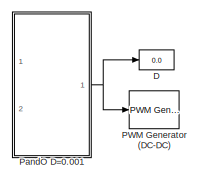
[diagram: root canvas - part 1/4, top right region]
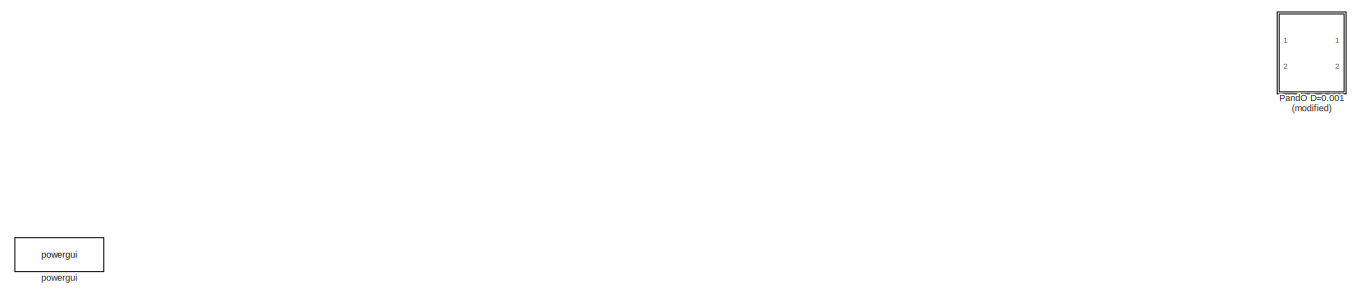
[diagram: root canvas - part 2/4, top left region]
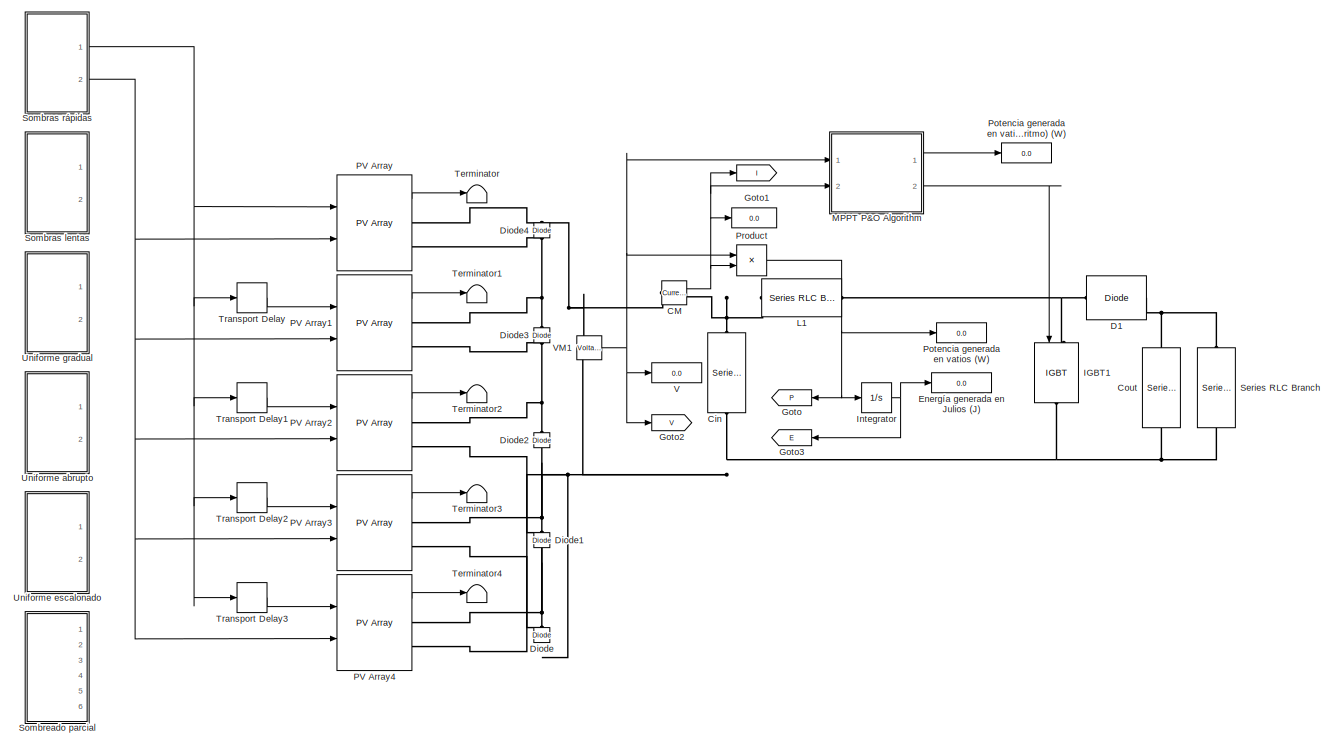
[diagram: root canvas - part 3/4, bottom center region]
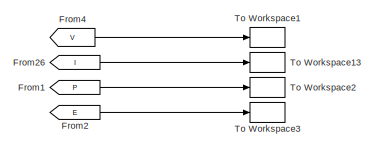
[diagram: root canvas - part 4/4, bottom right region]
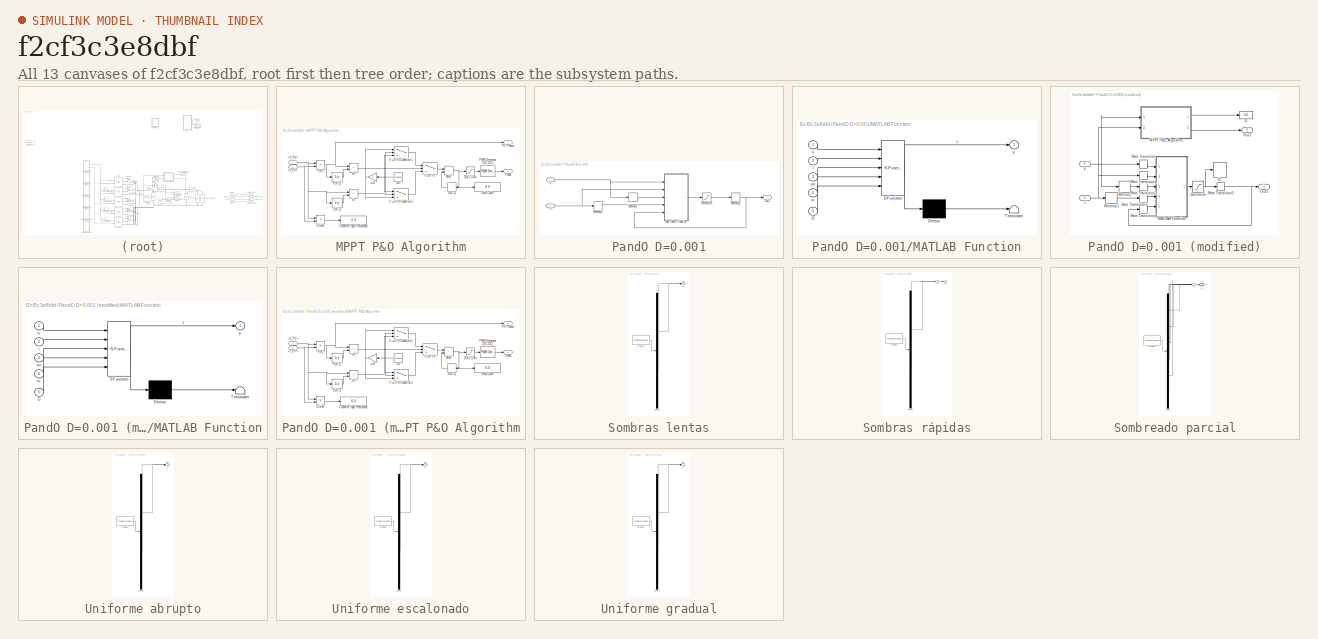
[diagram: thumbnail index - all 13 canvases of the model, root first then tree order]
MODEL slx_f2cf3c3e8dbf
KIND model
CONFIG AbsTol = auto
CONFIG EnableMultiTasking = off
CONFIG FixedStep = auto
CONFIG MaxStep = auto
CONFIG MinStep = auto
CONFIG RelTol = 1e-4
CONFIG SampleTimeConstraint = Unconstrained
CONFIG SolverName = ode23tb
CONFIG StartTime = 0.0
CONFIG StopTime = 60
BLOCK [Reference] CM  REF=spsCurrentMeasurementLib/Current Measurement
  Ports = [0, 1, 0, 0, 0, 1, 1]
  SourceBlock = spsCurrentMeasurementLib/Current Measurement
  SourceProductBaseCode = PS
  SourceType = Current Measurement
  UserDataPersistent = on
BLOCK [Reference] Cin  REF=spsSeriesRLCBranchLib/Series RLC Branch
  NameLocation = left
  Ports = [0, 0, 0, 0, 0, 1, 1]
  SourceBlock = spsSeriesRLCBranchLib/Series RLC Branch
  SourceProductBaseCode = PS
  SourceType = Series RLC Branch
BLOCK [Reference] Cout  REF=spsSeriesRLCBranchLib/Series RLC Branch
  NameLocation = left
  Ports = [0, 0, 0, 0, 0, 1, 1]
  SourceBlock = spsSeriesRLCBranchLib/Series RLC Branch
  SourceProductBaseCode = PS
  SourceType = Series RLC Branch
BLOCK [Display] D
  Commented = on
  Decimation = 1
  NameLocation = top
  Ports = [1]
BLOCK [Reference] D1  REF=spsDiodeLib/Diode
  Ports = [0, 0, 0, 0, 0, 1, 1]
  SourceBlock = spsDiodeLib/Diode
  SourceProductBaseCode = PS
  SourceType = Diode
BLOCK [Reference] Diode  REF=spsDiodeLib/Diode
  NameLocation = right
  Ports = [0, 0, 0, 0, 0, 1, 1]
  SourceBlock = spsDiodeLib/Diode
  SourceProductBaseCode = PS
  SourceType = Diode
BLOCK [Reference] Diode1  REF=spsDiodeLib/Diode
  NameLocation = right
  Ports = [0, 0, 0, 0, 0, 1, 1]
  SourceBlock = spsDiodeLib/Diode
  SourceProductBaseCode = PS
  SourceType = Diode
BLOCK [Reference] Diode2  REF=spsDiodeLib/Diode
  NameLocation = right
  Ports = [0, 0, 0, 0, 0, 1, 1]
  SourceBlock = spsDiodeLib/Diode
  SourceProductBaseCode = PS
  SourceType = Diode
BLOCK [Reference] Diode3  REF=spsDiodeLib/Diode
  NameLocation = right
  Ports = [0, 0, 0, 0, 0, 1, 1]
  SourceBlock = spsDiodeLib/Diode
  SourceProductBaseCode = PS
  SourceType = Diode
BLOCK [Reference] Diode4  REF=spsDiodeLib/Diode
  NameLocation = right
  Ports = [0, 0, 0, 0, 0, 1, 1]
  SourceBlock = spsDiodeLib/Diode
  SourceProductBaseCode = PS
  SourceType = Diode
BLOCK [Display] Energía generada en Julios (J) 
  Decimation = 1
  NameLocation = top
  Ports = [1]
BLOCK [From] From1
  GotoTag = P
BLOCK [From] From2
  GotoTag = E
BLOCK [From] From26
  GotoTag = I
BLOCK [From] From4
  GotoTag = V
BLOCK [Goto] Goto
  GotoTag = P
BLOCK [Goto] Goto1
  GotoTag = I
BLOCK [Goto] Goto2
  GotoTag = V
BLOCK [Goto] Goto3
  GotoTag = E
BLOCK [Display] I
  Decimation = 1
  NameLocation = top
  Ports = [1]
BLOCK [Reference] IGBT1  REF=spsIGBTLib/IGBT
  NameLocation = left
  Ports = [1, 0, 0, 0, 0, 1, 1]
  SourceBlock = spsIGBTLib/IGBT
  SourceProductBaseCode = PS
  SourceType = IGBT
BLOCK [Integrator] Integrator
  Ports = [1, 1]
  ZeroCross = off
BLOCK [Reference] L1  REF=spsSeriesRLCBranchLib/Series RLC Branch
  Ports = [0, 0, 0, 0, 0, 1, 1]
  SourceBlock = spsSeriesRLCBranchLib/Series RLC Branch
  SourceProductBaseCode = PS
  SourceType = Series RLC Branch
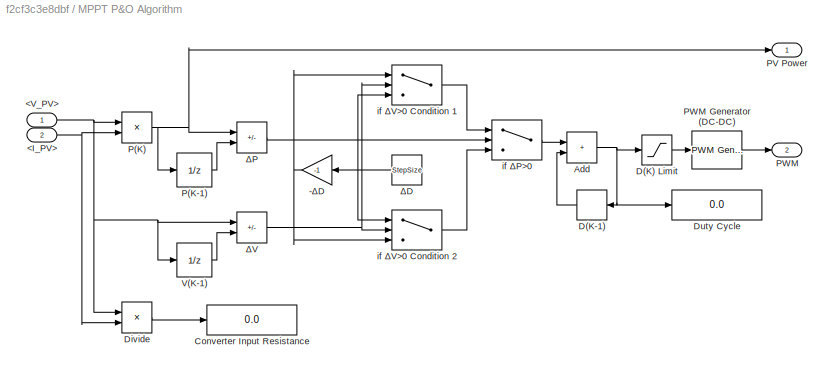
BLOCK [SubSystem] MPPT P&O Algorithm
  Ports = [2, 2]
  RequestExecContextInheritance = off
BLOCK [Gain] MPPT P&O Algorithm/-∆D
  Gain = -1
BLOCK [Inport] MPPT P&O Algorithm/<I_PV>
  Port = 2
BLOCK [Inport] MPPT P&O Algorithm/<V_PV>
  NameLocation = top
BLOCK [Sum] MPPT P&O Algorithm/Add
  IconShape = rectangular
  Ports = [2, 1]
BLOCK [Display] MPPT P&O Algorithm/Converter Input Resistance
  Decimation = 1
  Ports = [1]
BLOCK [Saturate] MPPT P&O Algorithm/D(K) Limit
  LowerLimit = 0
  UpperLimit = 1
BLOCK [Memory] MPPT P&O Algorithm/D(K-1)
  InheritSampleTime = on
  InitialCondition = 0.5
BLOCK [Product] MPPT P&O Algorithm/Divide
  Inputs = */
  Ports = [2, 1]
BLOCK [Display] MPPT P&O Algorithm/Duty Cycle
  Decimation = 1
  Ports = [1]
BLOCK [Product] MPPT P&O Algorithm/P(K)
  Ports = [2, 1]
BLOCK [UnitDelay] MPPT P&O Algorithm/P(K-1)
  HasFrameUpgradeWarning = on
  SampleTime = -1
BLOCK [Outport] MPPT P&O Algorithm/PV Power
  VectorParamsAs1DForOutWhenUnconnected = off
BLOCK [Outport] MPPT P&O Algorithm/PWM
  Port = 2
  VectorParamsAs1DForOutWhenUnconnected = off
BLOCK [Reference] MPPT P&O Algorithm/PWM Generator (DC-DC)  REF=spsPWMGeneratorDCDCLib/PWM Generator
(DC-DC)
  NameLocation = top
  Ports = [1, 1]
  SourceBlock = spsPWMGeneratorDCDCLib/PWM Generator\n(DC-DC)
  SourceProductBaseCode = PS
  SourceType = PWM Generator (DC-DC)
BLOCK [UnitDelay] MPPT P&O Algorithm/V(K-1)
  HasFrameUpgradeWarning = on
  SampleTime = -1
BLOCK [Switch] MPPT P&O Algorithm/if ∆P>0
  Criteria = u2 > Threshold
  InputSameDT = off
  SaturateOnIntegerOverflow = off
BLOCK [Switch] MPPT P&O Algorithm/if ∆V>0 Condition 1
  Criteria = u2 > Threshold
  InputSameDT = off
  SaturateOnIntegerOverflow = off
BLOCK [Switch] MPPT P&O Algorithm/if ∆V>0 Condition 2
  Criteria = u2 > Threshold
  InputSameDT = off
  SaturateOnIntegerOverflow = off
BLOCK [Constant] MPPT P&O Algorithm/∆D
  Value = StepSize
BLOCK [Sum] MPPT P&O Algorithm/∆P
  IconShape = rectangular
  Inputs = +-
  Ports = [2, 1]
BLOCK [Sum] MPPT P&O Algorithm/∆V
  IconShape = rectangular
  Inputs = +-
  Ports = [2, 1]
BLOCK [Reference] PV Array  REF=spsPVArrayLib/PV Array
  Ports = [2, 1, 0, 0, 0, 0, 2]
  SourceBlock = spsPVArrayLib/PV Array
  SourceProductBaseCode = PS
  SourceType = PV array
BLOCK [Reference] PV Array1  REF=spsPVArrayLib/PV Array
  Ports = [2, 1, 0, 0, 0, 0, 2]
  SourceBlock = spsPVArrayLib/PV Array
  SourceProductBaseCode = PS
  SourceType = PV array
BLOCK [Reference] PV Array2  REF=spsPVArrayLib/PV Array
  Ports = [2, 1, 0, 0, 0, 0, 2]
  SourceBlock = spsPVArrayLib/PV Array
  SourceProductBaseCode = PS
  SourceType = PV array
BLOCK [Reference] PV Array3  REF=spsPVArrayLib/PV Array
  Ports = [2, 1, 0, 0, 0, 0, 2]
  SourceBlock = spsPVArrayLib/PV Array
  SourceProductBaseCode = PS
  SourceType = PV array
BLOCK [Reference] PV Array4  REF=spsPVArrayLib/PV Array
  Ports = [2, 1, 0, 0, 0, 0, 2]
  SourceBlock = spsPVArrayLib/PV Array
  SourceProductBaseCode = PS
  SourceType = PV array
BLOCK [Reference] PWM Generator (DC-DC)  REF=spsPWMGeneratorDCDCLib/PWM Generator
(DC-DC)
  Commented = on
  Ports = [1, 1]
  SourceBlock = spsPWMGeneratorDCDCLib/PWM Generator\n(DC-DC)
  SourceProductBaseCode = PS
  SourceType = PWM Generator (DC-DC)
BLOCK [SubSystem] PandO D=0.001
  Commented = on
  Ports = [2, 1]
  RequestExecContextInheritance = off
BLOCK [SubSystem] PandO D=0.001 (modified)
  Commented = on
  Ports = [2, 2]
  RequestExecContextInheritance = off
BLOCK [Display] PandO D=0.001 (modified)/D
  Commented = on
  Decimation = 1
  NameLocation = top
  Ports = [1]
BLOCK [Inport] PandO D=0.001 (modified)/I
  Port = 2
BLOCK [InitialCondition] PandO D=0.001 (modified)/IC
  Commented = on
  Value = 0
BLOCK [SubSystem] PandO D=0.001 (modified)/MATLAB Function
  ErrorFcn = Stateflow.Translate.translate
  PermitHierarchicalResolution = ExplicitOnly
  Ports = [5, 1]
  RequestExecContextInheritance = off
  SFBlockType = MATLAB Function
  TreatAsAtomicUnit = on
BLOCK [Demux] PandO D=0.001 (modified)/MATLAB Function/ Demux 
  Outputs = 1
  Ports = [1, 1]
BLOCK [S-Function] PandO D=0.001 (modified)/MATLAB Function/ SFunction 
  EnableBusSupport = on
  FunctionName = sf_sfun
  PortCounts = [5 2]
  Ports = [5, 2]
  SFcnIsStateOwnerBlock = off
  SFunctionDeploymentMode = off
  Tag = Stateflow S-Function 2
BLOCK [Terminator] PandO D=0.001 (modified)/MATLAB Function/ Terminator 
BLOCK [Inport] PandO D=0.001 (modified)/MATLAB Function/D
  Port = 5
BLOCK [Inport] PandO D=0.001 (modified)/MATLAB Function/i
  Port = 2
BLOCK [Inport] PandO D=0.001 (modified)/MATLAB Function/io
  Port = 4
BLOCK [Inport] PandO D=0.001 (modified)/MATLAB Function/u
BLOCK [Inport] PandO D=0.001 (modified)/MATLAB Function/uo
  Port = 3
BLOCK [Outport] PandO D=0.001 (modified)/MATLAB Function/y
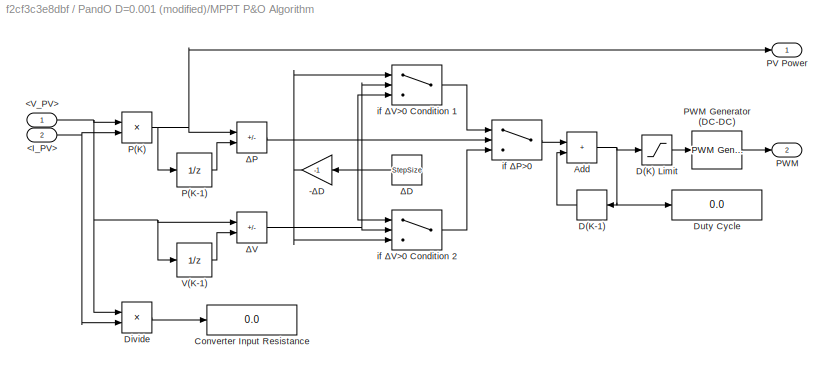
BLOCK [SubSystem] PandO D=0.001 (modified)/MPPT P&O Algorithm
  Commented = on
  Ports = [2, 2]
  RequestExecContextInheritance = off
BLOCK [Gain] PandO D=0.001 (modified)/MPPT P&O Algorithm/-∆D
  Gain = -1
BLOCK [Inport] PandO D=0.001 (modified)/MPPT P&O Algorithm/<I_PV>
  Port = 2
BLOCK [Inport] PandO D=0.001 (modified)/MPPT P&O Algorithm/<V_PV>
  NameLocation = top
BLOCK [Sum] PandO D=0.001 (modified)/MPPT P&O Algorithm/Add
  IconShape = rectangular
  Ports = [2, 1]
BLOCK [Display] PandO D=0.001 (modified)/MPPT P&O Algorithm/Converter Input Resistance
  Decimation = 1
  Ports = [1]
BLOCK [Saturate] PandO D=0.001 (modified)/MPPT P&O Algorithm/D(K) Limit
  LowerLimit = 0
  UpperLimit = 1
BLOCK [Memory] PandO D=0.001 (modified)/MPPT P&O Algorithm/D(K-1)
  InheritSampleTime = on
  InitialCondition = 0.5
BLOCK [Product] PandO D=0.001 (modified)/MPPT P&O Algorithm/Divide
  Inputs = */
  Ports = [2, 1]
BLOCK [Display] PandO D=0.001 (modified)/MPPT P&O Algorithm/Duty Cycle
  Decimation = 1
  Ports = [1]
BLOCK [Product] PandO D=0.001 (modified)/MPPT P&O Algorithm/P(K)
  Ports = [2, 1]
BLOCK [UnitDelay] PandO D=0.001 (modified)/MPPT P&O Algorithm/P(K-1)
  HasFrameUpgradeWarning = on
  SampleTime = -1
BLOCK [Outport] PandO D=0.001 (modified)/MPPT P&O Algorithm/PV Power
  VectorParamsAs1DForOutWhenUnconnected = off
BLOCK [Outport] PandO D=0.001 (modified)/MPPT P&O Algorithm/PWM
  Port = 2
  VectorParamsAs1DForOutWhenUnconnected = off
BLOCK [Reference] PandO D=0.001 (modified)/MPPT P&O Algorithm/PWM Generator (DC-DC)  REF=spsPWMGeneratorDCDCLib/PWM Generator
(DC-DC)
  NameLocation = top
  Ports = [1, 1]
  SourceBlock = spsPWMGeneratorDCDCLib/PWM Generator\n(DC-DC)
  SourceProductBaseCode = PS
  SourceType = PWM Generator (DC-DC)
BLOCK [UnitDelay] PandO D=0.001 (modified)/MPPT P&O Algorithm/V(K-1)
  HasFrameUpgradeWarning = on
  SampleTime = -1
BLOCK [Switch] PandO D=0.001 (modified)/MPPT P&O Algorithm/if ∆P>0
  Criteria = u2 > Threshold
  InputSameDT = off
  SaturateOnIntegerOverflow = off
BLOCK [Switch] PandO D=0.001 (modified)/MPPT P&O Algorithm/if ∆V>0 Condition 1
  Criteria = u2 > Threshold
  InputSameDT = off
  SaturateOnIntegerOverflow = off
BLOCK [Switch] PandO D=0.001 (modified)/MPPT P&O Algorithm/if ∆V>0 Condition 2
  Criteria = u2 > Threshold
  InputSameDT = off
  SaturateOnIntegerOverflow = off
BLOCK [Constant] PandO D=0.001 (modified)/MPPT P&O Algorithm/∆D
  Value = StepSize
BLOCK [Sum] PandO D=0.001 (modified)/MPPT P&O Algorithm/∆P
  IconShape = rectangular
  Inputs = +-
  Ports = [2, 1]
BLOCK [Sum] PandO D=0.001 (modified)/MPPT P&O Algorithm/∆V
  IconShape = rectangular
  Inputs = +-
  Ports = [2, 1]
BLOCK [Memory] PandO D=0.001 (modified)/Memory
BLOCK [Memory] PandO D=0.001 (modified)/Memory1
BLOCK [Outport] PandO D=0.001 (modified)/Out1
BLOCK [Outport] PandO D=0.001 (modified)/Out2
  Port = 2
BLOCK [RateTransition] PandO D=0.001 (modified)/Rate Transition
  OutPortSampleTime = 1e-3
BLOCK [RateTransition] PandO D=0.001 (modified)/Rate Transition1
  OutPortSampleTime = 1e-3
BLOCK [RateTransition] PandO D=0.001 (modified)/Rate Transition2
  OutPortSampleTime = 1e-3
BLOCK [RateTransition] PandO D=0.001 (modified)/Rate Transition3
  OutPortSampleTime = 1e-3
BLOCK [RateTransition] PandO D=0.001 (modified)/Rate Transition4
  OutPortSampleTime = 1e-3
BLOCK [RateTransition] PandO D=0.001 (modified)/Rate Transition5
  OutPortSampleTime = 1e-6
  OutPortSampleTimeOpt = Inherit
BLOCK [Saturate] PandO D=0.001 (modified)/Saturation
BLOCK [Inport] PandO D=0.001 (modified)/V 
BLOCK [Inport] PandO D=0.001/I
  Port = 2
BLOCK [SubSystem] PandO D=0.001/MATLAB Function
  ErrorFcn = Stateflow.Translate.translate
  PermitHierarchicalResolution = ExplicitOnly
  Ports = [5, 1]
  RequestExecContextInheritance = off
  SFBlockType = MATLAB Function
  TreatAsAtomicUnit = on
BLOCK [Demux] PandO D=0.001/MATLAB Function/ Demux 
  Outputs = 1
  Ports = [1, 1]
BLOCK [S-Function] PandO D=0.001/MATLAB Function/ SFunction 
  EnableBusSupport = on
  FunctionName = sf_sfun
  PortCounts = [5 2]
  Ports = [5, 2]
  SFcnIsStateOwnerBlock = off
  SFunctionDeploymentMode = off
  Tag = Stateflow S-Function 1
BLOCK [Terminator] PandO D=0.001/MATLAB Function/ Terminator 
BLOCK [Inport] PandO D=0.001/MATLAB Function/D
  Port = 5
BLOCK [Inport] PandO D=0.001/MATLAB Function/i
  Port = 2
BLOCK [Inport] PandO D=0.001/MATLAB Function/io
  Port = 4
BLOCK [Inport] PandO D=0.001/MATLAB Function/u
BLOCK [Inport] PandO D=0.001/MATLAB Function/uo
  Port = 3
BLOCK [Outport] PandO D=0.001/MATLAB Function/y
BLOCK [Memory] PandO D=0.001/Memory
BLOCK [Memory] PandO D=0.001/Memory1
BLOCK [Memory] PandO D=0.001/Memory2
BLOCK [Outport] PandO D=0.001/Out1
BLOCK [Saturate] PandO D=0.001/Saturation
BLOCK [Inport] PandO D=0.001/V 
BLOCK [Display] Potencia generada en vatios (W) 
  Decimation = 1
  NameLocation = top
  Ports = [1]
BLOCK [Display] Potencia generada en vatios (algoritmo) (W)
  Decimation = 1
  Ports = [1]
BLOCK [Product] Product
  NameLocation = top
  Ports = [2, 1]
BLOCK [Reference] Series RLC Branch  REF=spsSeriesRLCBranchLib/Series RLC Branch
  NameLocation = left
  Ports = [0, 0, 0, 0, 0, 1, 1]
  SourceBlock = spsSeriesRLCBranchLib/Series RLC Branch
  SourceProductBaseCode = PS
  SourceType = Series RLC Branch
BLOCK [SubSystem] Sombras lentas
  ClipboardFcn = sigbuilder_block('clipboard');
  CloseFcn = sigbuilder_block('close');
  ContinueFcn = sigbuilder_block('continue');
  CopyFcn = sigbuilder_block('copy');
  DeleteFcn = sigbuilder_block('delete');
  LoadFcn = sigbuilder_block('load');
  MaskHideContents = on
  ModelCloseFcn = sigbuilder_block('modelClose');
  NameChangeFcn = sigbuilder_block('namechange');
  OpenFcn = sigbuilder_block('open',[6 30 1908 951.75 ]);
  PauseFcn = sigbuilder_block('pause');
  Ports = [0, 2]
  PreSaveFcn = sigbuilder_block('preSave');
  RequestExecContextInheritance = off
  StartFcn = sigbuilder_block('start');
  StopFcn = sigbuilder_block('stop');
  Tag = STV Subsys
BLOCK [Demux] Sombras lentas/Demux
  DisplayOption = none
  Outputs = 2
  Ports = [1, 2]
  Tag = STV Demux
BLOCK [FromWorkspace] Sombras lentas/FromWs
  Tag = STV FromWs
  VariableName = tuvar
BLOCK [Outport] Sombras lentas/Ir1
  Tag = STV Outport
BLOCK [Outport] Sombras lentas/Ta
  Port = 2
  Tag = STV Outport
BLOCK [SubSystem] Sombras rápidas
  ClipboardFcn = sigbuilder_block('clipboard');
  CloseFcn = sigbuilder_block('close');
  ContinueFcn = sigbuilder_block('continue');
  CopyFcn = sigbuilder_block('copy');
  DeleteFcn = sigbuilder_block('delete');
  LoadFcn = sigbuilder_block('load');
  MaskHideContents = on
  ModelCloseFcn = sigbuilder_block('modelClose');
  NameChangeFcn = sigbuilder_block('namechange');
  OpenFcn = sigbuilder_block('open',[209.25 84.75 1440 681.75 ]);
  PauseFcn = sigbuilder_block('pause');
  Ports = [0, 2]
  PreSaveFcn = sigbuilder_block('preSave');
  RequestExecContextInheritance = off
  StartFcn = sigbuilder_block('start');
  StopFcn = sigbuilder_block('stop');
  Tag = STV Subsys
BLOCK [Demux] Sombras rápidas/Demux
  DisplayOption = none
  Outputs = 2
  Ports = [1, 2]
  Tag = STV Demux
BLOCK [FromWorkspace] Sombras rápidas/FromWs
  Tag = STV FromWs
  VariableName = tuvar
BLOCK [Outport] Sombras rápidas/Ir1
  Tag = STV Outport
BLOCK [Outport] Sombras rápidas/Ta
  Port = 2
  Tag = STV Outport
BLOCK [SubSystem] Sombreado parcial
  ClipboardFcn = sigbuilder_block('clipboard');
  CloseFcn = sigbuilder_block('close');
  ContinueFcn = sigbuilder_block('continue');
  CopyFcn = sigbuilder_block('copy');
  DeleteFcn = sigbuilder_block('delete');
  LoadFcn = sigbuilder_block('load');
  MaskHideContents = on
  ModelCloseFcn = sigbuilder_block('modelClose');
  NameChangeFcn = sigbuilder_block('namechange');
  OpenFcn = sigbuilder_block('open',[6 30 1908 951.75 ]);
  PauseFcn = sigbuilder_block('pause');
  Ports = [0, 6]
  PreSaveFcn = sigbuilder_block('preSave');
  RequestExecContextInheritance = off
  StartFcn = sigbuilder_block('start');
  StopFcn = sigbuilder_block('stop');
  Tag = STV Subsys
BLOCK [Demux] Sombreado parcial/Demux
  DisplayOption = none
  Outputs = 6
  Ports = [1, 6]
  Tag = STV Demux
BLOCK [FromWorkspace] Sombreado parcial/FromWs
  Tag = STV FromWs
  VariableName = tuvar
BLOCK [Outport] Sombreado parcial/Ir1
  Tag = STV Outport
BLOCK [Outport] Sombreado parcial/Ir2
  Port = 2
  Tag = STV Outport
BLOCK [Outport] Sombreado parcial/Ir3
  Port = 3
  Tag = STV Outport
BLOCK [Outport] Sombreado parcial/Ir4
  Port = 4
  Tag = STV Outport
BLOCK [Outport] Sombreado parcial/Ir5
  Port = 5
  Tag = STV Outport
BLOCK [Outport] Sombreado parcial/Ta1
  Port = 6
  Tag = STV Outport
BLOCK [Terminator] Terminator
  NameLocation = top
BLOCK [Terminator] Terminator1
  NameLocation = top
BLOCK [Terminator] Terminator2
  NameLocation = top
BLOCK [Terminator] Terminator3
  NameLocation = top
BLOCK [Terminator] Terminator4
  NameLocation = top
BLOCK [ToWorkspace] To Workspace1
  MaxDataPoints = inf
  Ports = [1]
  SampleTime = 1e-3
  VariableName = V
BLOCK [ToWorkspace] To Workspace13
  FixptAsFi = on
  MaxDataPoints = inf
  Ports = [1]
  SampleTime = 1e-3
  VariableName = I
BLOCK [ToWorkspace] To Workspace2
  FixptAsFi = on
  MaxDataPoints = inf
  Ports = [1]
  SampleTime = 1e-3
  VariableName = P
BLOCK [ToWorkspace] To Workspace3
  FixptAsFi = on
  MaxDataPoints = inf
  Ports = [1]
  SampleTime = 1e-3
  VariableName = E
BLOCK [TransportDelay] Transport Delay
  DelayTime = 0.1
  InitialOutput = 910
  Ports = [1, 1]
BLOCK [TransportDelay] Transport Delay1
  DelayTime = 0.2
  InitialOutput = 910
  Ports = [1, 1]
BLOCK [TransportDelay] Transport Delay2
  DelayTime = 0.3
  InitialOutput = 910
  Ports = [1, 1]
BLOCK [TransportDelay] Transport Delay3
  DelayTime = 0.4
  InitialOutput = 910
  Ports = [1, 1]
BLOCK [SubSystem] Uniforme abrupto
  ClipboardFcn = sigbuilder_block('clipboard');
  CloseFcn = sigbuilder_block('close');
  ContinueFcn = sigbuilder_block('continue');
  CopyFcn = sigbuilder_block('copy');
  DeleteFcn = sigbuilder_block('delete');
  LoadFcn = sigbuilder_block('load');
  MaskHideContents = on
  ModelCloseFcn = sigbuilder_block('modelClose');
  NameChangeFcn = sigbuilder_block('namechange');
  OpenFcn = sigbuilder_block('open',[6 30 1908 951.75 ]);
  PauseFcn = sigbuilder_block('pause');
  Ports = [0, 2]
  PreSaveFcn = sigbuilder_block('preSave');
  RequestExecContextInheritance = off
  StartFcn = sigbuilder_block('start');
  StopFcn = sigbuilder_block('stop');
  Tag = STV Subsys
BLOCK [Demux] Uniforme abrupto/Demux
  DisplayOption = none
  Outputs = 2
  Ports = [1, 2]
  Tag = STV Demux
BLOCK [FromWorkspace] Uniforme abrupto/FromWs
  Tag = STV FromWs
  VariableName = tuvar
BLOCK [Outport] Uniforme abrupto/Ir1
  Tag = STV Outport
BLOCK [Outport] Uniforme abrupto/Ta
  Port = 2
  Tag = STV Outport
BLOCK [SubSystem] Uniforme escalonado
  ClipboardFcn = sigbuilder_block('clipboard');
  CloseFcn = sigbuilder_block('close');
  ContinueFcn = sigbuilder_block('continue');
  CopyFcn = sigbuilder_block('copy');
  DeleteFcn = sigbuilder_block('delete');
  LoadFcn = sigbuilder_block('load');
  MaskHideContents = on
  ModelCloseFcn = sigbuilder_block('modelClose');
  NameChangeFcn = sigbuilder_block('namechange');
  OpenFcn = sigbuilder_block('open',[6 30 1908 951.75 ]);
  PauseFcn = sigbuilder_block('pause');
  Ports = [0, 2]
  PreSaveFcn = sigbuilder_block('preSave');
  RequestExecContextInheritance = off
  StartFcn = sigbuilder_block('start');
  StopFcn = sigbuilder_block('stop');
  Tag = STV Subsys
BLOCK [Demux] Uniforme escalonado/Demux
  DisplayOption = none
  Outputs = 2
  Ports = [1, 2]
  Tag = STV Demux
BLOCK [FromWorkspace] Uniforme escalonado/FromWs
  Tag = STV FromWs
  VariableName = tuvar
BLOCK [Outport] Uniforme escalonado/Ir1
  Tag = STV Outport
BLOCK [Outport] Uniforme escalonado/Ta
  Port = 2
  Tag = STV Outport
BLOCK [SubSystem] Uniforme gradual
  ClipboardFcn = sigbuilder_block('clipboard');
  CloseFcn = sigbuilder_block('close');
  ContinueFcn = sigbuilder_block('continue');
  CopyFcn = sigbuilder_block('copy');
  DeleteFcn = sigbuilder_block('delete');
  LoadFcn = sigbuilder_block('load');
  MaskHideContents = on
  ModelCloseFcn = sigbuilder_block('modelClose');
  NameChangeFcn = sigbuilder_block('namechange');
  OpenFcn = sigbuilder_block('open',[6 30 1908 951.75 ]);
  PauseFcn = sigbuilder_block('pause');
  Ports = [0, 2]
  PreSaveFcn = sigbuilder_block('preSave');
  RequestExecContextInheritance = off
  StartFcn = sigbuilder_block('start');
  StopFcn = sigbuilder_block('stop');
  Tag = STV Subsys
BLOCK [Demux] Uniforme gradual/Demux
  DisplayOption = none
  Outputs = 2
  Ports = [1, 2]
  Tag = STV Demux
BLOCK [FromWorkspace] Uniforme gradual/FromWs
  Tag = STV FromWs
  VariableName = tuvar
BLOCK [Outport] Uniforme gradual/Ir1
  Tag = STV Outport
BLOCK [Outport] Uniforme gradual/Ta
  Port = 2
  Tag = STV Outport
BLOCK [Display] V
  Decimation = 1
  NameLocation = top
  Ports = [1]
BLOCK [Reference] VM1  REF=spsVoltageMeasurementLib/Voltage Measurement
  Ports = [0, 1, 0, 0, 0, 2]
  SourceBlock = spsVoltageMeasurementLib/Voltage Measurement
  SourceProductBaseCode = PS
  SourceType = Voltage Measurement
  UserDataPersistent = on
BLOCK [Reference] powergui  REF=spspowerguiLib/powergui
  Ports = []
  Priority = 1
  SourceBlock = spspowerguiLib/powergui
  SourceProductBaseCode = PS
  SourceType = PSB option menu block
NET CM:1 -> Goto1:1, I:1, MPPT P&O Algorithm:2, Product:2
LINE From1:1 -> To Workspace2:1
LINE From26:1 -> To Workspace13:1
LINE From2:1 -> To Workspace3:1
LINE From4:1 -> To Workspace1:1
NET Integrator:1 -> Energía generada en Julios (J) :1, Goto3:1
NET MPPT P&O Algorithm/-∆D:1 -> MPPT P&O Algorithm/if ∆V>0 Condition 1:1, MPPT P&O Algorithm/if ∆V>0 Condition 2:3
NET MPPT P&O Algorithm/<I_PV>:1 -> MPPT P&O Algorithm/Divide:2, MPPT P&O Algorithm/P(K):2
NET MPPT P&O Algorithm/<V_PV>:1 -> MPPT P&O Algorithm/Divide:1, MPPT P&O Algorithm/P(K):1, MPPT P&O Algorithm/V(K-1):1, MPPT P&O Algorithm/∆V:1
NET MPPT P&O Algorithm/Add:1 -> MPPT P&O Algorithm/D(K) Limit:1, MPPT P&O Algorithm/D(K-1):1, MPPT P&O Algorithm/Duty Cycle:1
LINE MPPT P&O Algorithm/D(K) Limit:1 -> MPPT P&O Algorithm/PWM Generator (DC-DC):1
LINE MPPT P&O Algorithm/D(K-1):1 -> MPPT P&O Algorithm/Add:2
LINE MPPT P&O Algorithm/Divide:1 -> MPPT P&O Algorithm/Converter Input Resistance:1
NET MPPT P&O Algorithm/P(K):1 -> MPPT P&O Algorithm/P(K-1):1, MPPT P&O Algorithm/PV Power:1, MPPT P&O Algorithm/∆P:1
LINE MPPT P&O Algorithm/P(K-1):1 -> MPPT P&O Algorithm/∆P:2
LINE MPPT P&O Algorithm/PWM Generator (DC-DC):1 -> MPPT P&O Algorithm/PWM:1
LINE MPPT P&O Algorithm/V(K-1):1 -> MPPT P&O Algorithm/∆V:2
LINE MPPT P&O Algorithm/if ∆P>0:1 -> MPPT P&O Algorithm/Add:1
LINE MPPT P&O Algorithm/if ∆V>0 Condition 1:1 -> MPPT P&O Algorithm/if ∆P>0:1
LINE MPPT P&O Algorithm/if ∆V>0 Condition 2:1 -> MPPT P&O Algorithm/if ∆P>0:3
NET MPPT P&O Algorithm/∆D:1 -> MPPT P&O Algorithm/-∆D:1, MPPT P&O Algorithm/if ∆V>0 Condition 1:3, MPPT P&O Algorithm/if ∆V>0 Condition 2:1
LINE MPPT P&O Algorithm/∆P:1 -> MPPT P&O Algorithm/if ∆P>0:2
NET MPPT P&O Algorithm/∆V:1 -> MPPT P&O Algorithm/if ∆V>0 Condition 1:2, MPPT P&O Algorithm/if ∆V>0 Condition 2:2
LINE MPPT P&O Algorithm:1 -> Potencia generada en vatios (algoritmo) (W):1
LINE MPPT P&O Algorithm:2 -> IGBT1:1
LINE PV Array1:1 -> Terminator1:1
LINE PV Array2:1 -> Terminator2:1
LINE PV Array3:1 -> Terminator3:1
LINE PV Array4:1 -> Terminator4:1
LINE PV Array:1 -> Terminator:1
NET PandO D=0.001 (modified)/I:1 -> PandO D=0.001 (modified)/MPPT P&O Algorithm:2, PandO D=0.001 (modified)/Memory1:1, PandO D=0.001 (modified)/Rate Transition1:1
LINE PandO D=0.001 (modified)/MATLAB Function:1 -> PandO D=0.001 (modified)/Saturation:1
NET PandO D=0.001 (modified)/MPPT P&O Algorithm/-∆D:1 -> PandO D=0.001 (modified)/MPPT P&O Algorithm/if ∆V>0 Condition 1:1, PandO D=0.001 (modified)/MPPT P&O Algorithm/if ∆V>0 Condition 2:3
NET PandO D=0.001 (modified)/MPPT P&O Algorithm/<I_PV>:1 -> PandO D=0.001 (modified)/MPPT P&O Algorithm/Divide:2, PandO D=0.001 (modified)/MPPT P&O Algorithm/P(K):2
NET PandO D=0.001 (modified)/MPPT P&O Algorithm/<V_PV>:1 -> PandO D=0.001 (modified)/MPPT P&O Algorithm/Divide:1, PandO D=0.001 (modified)/MPPT P&O Algorithm/P(K):1, PandO D=0.001 (modified)/MPPT P&O Algorithm/V(K-1):1, PandO D=0.001 (modified)/MPPT P&O Algorithm/∆V:1
NET PandO D=0.001 (modified)/MPPT P&O Algorithm/Add:1 -> PandO D=0.001 (modified)/MPPT P&O Algorithm/D(K) Limit:1, PandO D=0.001 (modified)/MPPT P&O Algorithm/D(K-1):1, PandO D=0.001 (modified)/MPPT P&O Algorithm/Duty Cycle:1
LINE PandO D=0.001 (modified)/MPPT P&O Algorithm/D(K) Limit:1 -> PandO D=0.001 (modified)/MPPT P&O Algorithm/PWM Generator (DC-DC):1
LINE PandO D=0.001 (modified)/MPPT P&O Algorithm/D(K-1):1 -> PandO D=0.001 (modified)/MPPT P&O Algorithm/Add:2
LINE PandO D=0.001 (modified)/MPPT P&O Algorithm/Divide:1 -> PandO D=0.001 (modified)/MPPT P&O Algorithm/Converter Input Resistance:1
NET PandO D=0.001 (modified)/MPPT P&O Algorithm/P(K):1 -> PandO D=0.001 (modified)/MPPT P&O Algorithm/P(K-1):1, PandO D=0.001 (modified)/MPPT P&O Algorithm/PV Power:1, PandO D=0.001 (modified)/MPPT P&O Algorithm/∆P:1
LINE PandO D=0.001 (modified)/MPPT P&O Algorithm/P(K-1):1 -> PandO D=0.001 (modified)/MPPT P&O Algorithm/∆P:2
LINE PandO D=0.001 (modified)/MPPT P&O Algorithm/PWM Generator (DC-DC):1 -> PandO D=0.001 (modified)/MPPT P&O Algorithm/PWM:1
LINE PandO D=0.001 (modified)/MPPT P&O Algorithm/V(K-1):1 -> PandO D=0.001 (modified)/MPPT P&O Algorithm/∆V:2
LINE PandO D=0.001 (modified)/MPPT P&O Algorithm/if ∆P>0:1 -> PandO D=0.001 (modified)/MPPT P&O Algorithm/Add:1
LINE PandO D=0.001 (modified)/MPPT P&O Algorithm/if ∆V>0 Condition 1:1 -> PandO D=0.001 (modified)/MPPT P&O Algorithm/if ∆P>0:1
LINE PandO D=0.001 (modified)/MPPT P&O Algorithm/if ∆V>0 Condition 2:1 -> PandO D=0.001 (modified)/MPPT P&O Algorithm/if ∆P>0:3
NET PandO D=0.001 (modified)/MPPT P&O Algorithm/∆D:1 -> PandO D=0.001 (modified)/MPPT P&O Algorithm/-∆D:1, PandO D=0.001 (modified)/MPPT P&O Algorithm/if ∆V>0 Condition 1:3, PandO D=0.001 (modified)/MPPT P&O Algorithm/if ∆V>0 Condition 2:1
LINE PandO D=0.001 (modified)/MPPT P&O Algorithm/∆P:1 -> PandO D=0.001 (modified)/MPPT P&O Algorithm/if ∆P>0:2
NET PandO D=0.001 (modified)/MPPT P&O Algorithm/∆V:1 -> PandO D=0.001 (modified)/MPPT P&O Algorithm/if ∆V>0 Condition 1:2, PandO D=0.001 (modified)/MPPT P&O Algorithm/if ∆V>0 Condition 2:2
LINE PandO D=0.001 (modified)/MPPT P&O Algorithm:1 -> PandO D=0.001 (modified)/D:1
LINE PandO D=0.001 (modified)/MPPT P&O Algorithm:2 -> PandO D=0.001 (modified)/Out2:1
LINE PandO D=0.001 (modified)/Memory1:1 -> PandO D=0.001 (modified)/Rate Transition3:1
LINE PandO D=0.001 (modified)/Memory:1 -> PandO D=0.001 (modified)/Rate Transition2:1
LINE PandO D=0.001 (modified)/Rate Transition1:1 -> PandO D=0.001 (modified)/MATLAB Function:2
LINE PandO D=0.001 (modified)/Rate Transition2:1 -> PandO D=0.001 (modified)/MATLAB Function:3
LINE PandO D=0.001 (modified)/Rate Transition3:1 -> PandO D=0.001 (modified)/MATLAB Function:4
LINE PandO D=0.001 (modified)/Rate Transition4:1 -> PandO D=0.001 (modified)/MATLAB Function:5
NET PandO D=0.001 (modified)/Rate Transition5:1 -> PandO D=0.001 (modified)/Out1:1, PandO D=0.001 (modified)/Rate Transition4:1
LINE PandO D=0.001 (modified)/Rate Transition:1 -> PandO D=0.001 (modified)/MATLAB Function:1
NET PandO D=0.001 (modified)/Saturation:1 -> PandO D=0.001 (modified)/IC:1, PandO D=0.001 (modified)/Rate Transition5:1
NET PandO D=0.001 (modified)/V :1 -> PandO D=0.001 (modified)/MPPT P&O Algorithm:1, PandO D=0.001 (modified)/Memory:1, PandO D=0.001 (modified)/Rate Transition:1
NET PandO D=0.001/I:1 -> PandO D=0.001/MATLAB Function:2, PandO D=0.001/Memory1:1
LINE PandO D=0.001/MATLAB Function:1 -> PandO D=0.001/Saturation:1
LINE PandO D=0.001/Memory1:1 -> PandO D=0.001/MATLAB Function:4
NET PandO D=0.001/Memory2:1 -> PandO D=0.001/MATLAB Function:5, PandO D=0.001/Out1:1
LINE PandO D=0.001/Memory:1 -> PandO D=0.001/MATLAB Function:3
LINE PandO D=0.001/Saturation:1 -> PandO D=0.001/Memory2:1
NET PandO D=0.001/V :1 -> PandO D=0.001/MATLAB Function:1, PandO D=0.001/Memory:1
NET PandO D=0.001:1 -> D:1, PWM Generator (DC-DC):1
NET Product:1 -> Goto:1, Integrator:1, Potencia generada en vatios (W) :1
NET Sombras rápidas:1 -> PV Array:1, Transport Delay1:1, Transport Delay2:1, Transport Delay3:1, Transport Delay:1
NET Sombras rápidas:2 -> PV Array1:2, PV Array2:2, PV Array3:2, PV Array4:2, PV Array:2
LINE Transport Delay1:1 -> PV Array2:1
LINE Transport Delay2:1 -> PV Array3:1
LINE Transport Delay3:1 -> PV Array4:1
LINE Transport Delay:1 -> PV Array1:1
NET VM1:1 -> Goto2:1, MPPT P&O Algorithm:1, Product:1, V:1
PNET net1: CM:LConn1 -- Diode4:RConn1 -- PV Array:RConn1 -- VM1:LConn1
PNET net2: CM:RConn1 -- Cin:LConn1 -- L1:LConn1
PNET net3: Cin:RConn1 -- Cout:RConn1 -- Diode:LConn1 -- IGBT1:RConn1 -- PV Array4:RConn2 -- Series RLC Branch:RConn1 -- VM1:LConn2
PNET net4: Cout:LConn1 -- D1:RConn1 -- Series RLC Branch:LConn1
PNET net5: D1:LConn1 -- IGBT1:LConn1 -- L1:RConn1
PNET net6: Diode1:LConn1 -- Diode:RConn1 -- PV Array3:RConn2 -- PV Array4:RConn1
PNET net7: Diode1:RConn1 -- Diode2:LConn1 -- PV Array2:RConn2 -- PV Array3:RConn1
PNET net8: Diode2:RConn1 -- Diode3:LConn1 -- PV Array1:RConn2 -- PV Array2:RConn1
PNET net9: Diode3:RConn1 -- Diode4:LConn1 -- PV Array1:RConn1 -- PV Array:RConn2
note: NET lines group one-source signal fan-out (src -> all destinations, sorted); 1:1 wires keep LINE; PNET lines group multi-terminal physical nets as a canonical sorted terminal list (undirected conserving connections); 2-terminal nets keep the pairwise PLINE form
CHART PandO
D=0.001/MATLAB Function states=1 transitions=1
  STATE_LABEL 'eML_blk_kernel()'
  STATE_LABEL 'SCRIPT:\nfunction y = fcn(u,i,uo,io,D)\nm=0;\ndu=u-uo;\ndi=i-io;\ndp=(u*i)-(uo*io);\nd=.001;\nif dp>0\n    if du>0\n        m=D+d;\n    else\n        m=D-d;\n    end\nelse\n    if du>0\n        m=D+d;\n    else\n        m=D-d;\n    end\nend\ny = m;\nend\n\n'
CHART PandO
D=0.001 (modified)/MATLAB Function states=1 transitions=1
  STATE_LABEL 'eML_blk_kernel()'
  STATE_LABEL 'SCRIPT:\nfunction y = fcn(u,i,uo,io,D)\nm=0;\ndu=u-uo;\ndi=i-io;\ndp=(u*i)-(uo*io);\nd=.001;\nif dp>0\n    if du>0\n        m=D+d;\n    else\n        m=D-d;\n    end\nelse\n    if du>0\n        m=D+d;\n    else\n        m=D-d;\n    end\nend\ny = m;\nend\n\n'
CHART  states=0 transitions=0
CHART  states=0 transitions=0
